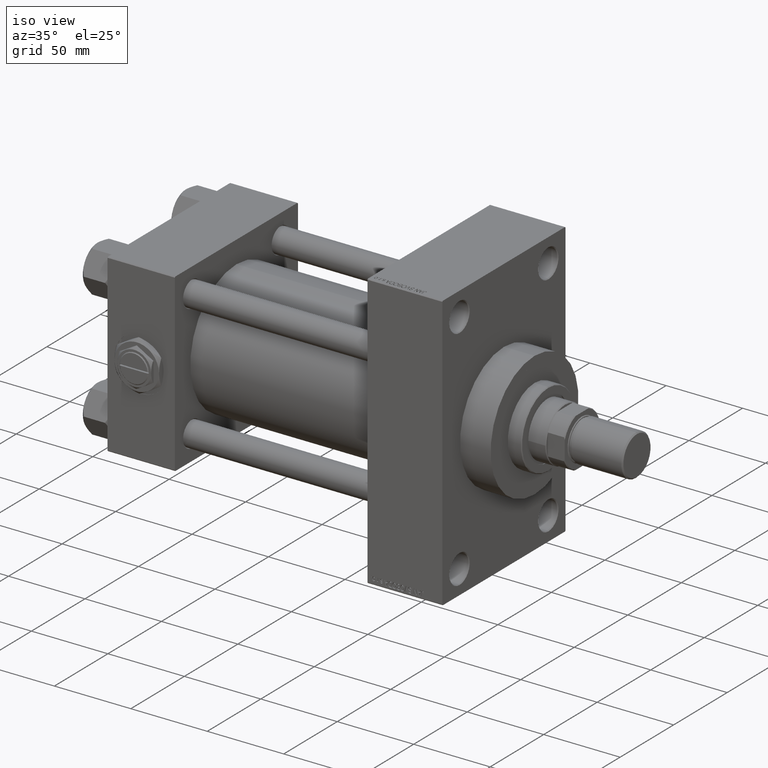
[diagram: clean part render]
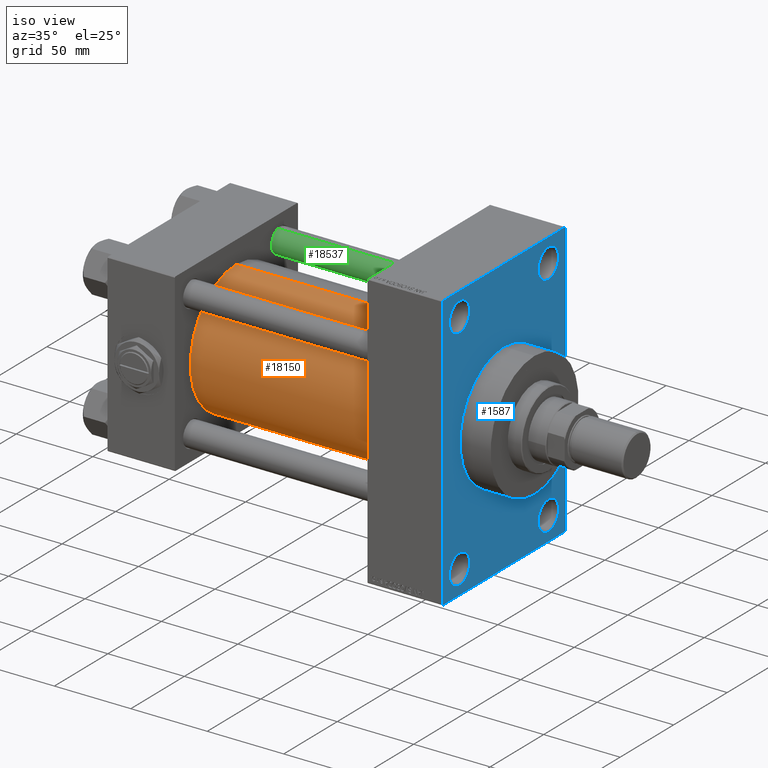
[diagram: same view with three faces highlighted in distinct colors, each labeled with its STEP entity id]
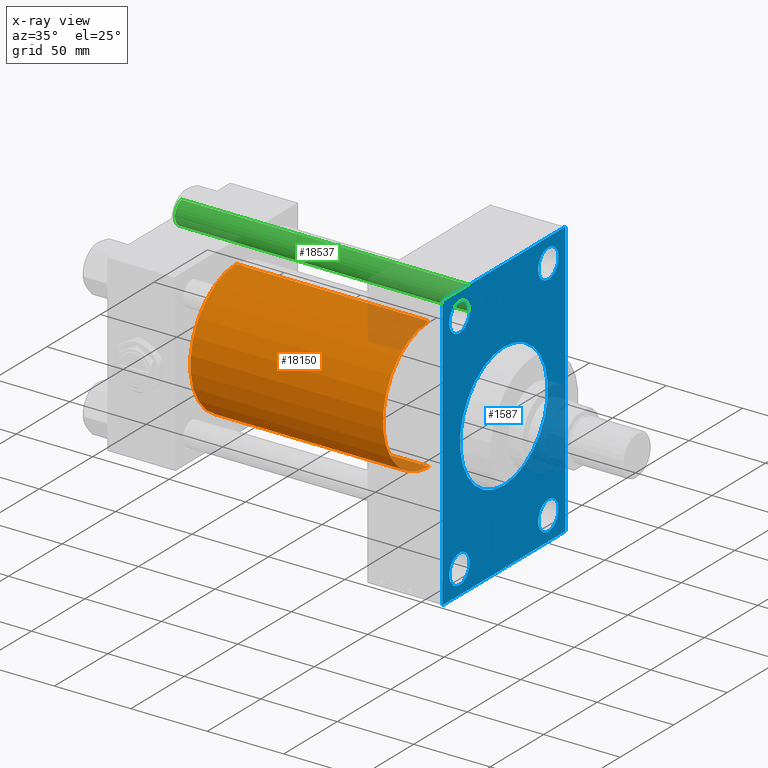
[diagram: x-ray of the same camera — body ghosted, the three highlighted faces saturated]
A machine part, iso view with three faces highlighted in distinct colors.
The next image is the same camera in x-ray (body ghosted, the three faces saturated) — at least one of them is partly hidden behind the body in this view.
Their STEP definitions:

[orange] entity #18150 — the highlighted cylindrical surface (partial cylindrical patch) has radius 43 mm, axis along (-1, -0, -0).
#805 = DIRECTION ( 'NONE',  ( 0.000000000000000000, 0.000000000000000000, 1.000000000000000000 ) ) ;
#1799 = DIRECTION ( 'NONE',  ( -1.000000000000000000, -0.000000000000000000, -0.000000000000000000 ) ) ;
#8947 = CIRCLE ( 'NONE', #32303, 43.00000000000000000 ) ;
#8984 = CARTESIAN_POINT ( 'NONE',  ( 169.9999999999999716, -2.602085213965210642E-15, 0.000000000000000000 ) ) ;
#10189 = CARTESIAN_POINT ( 'NONE',  ( 169.9999999999999716, 2.663896022368408223E-15, -43.00000000000000000 ) ) ;
#11305 = EDGE_CURVE ( 'NONE', #41194, #16848, #43953, .T. ) ;
#12919 = VECTOR ( 'NONE', #45011, 1000.000000000000000 ) ;
#14514 = CYLINDRICAL_SURFACE ( 'NONE', #19343, 43.00000000000000000 ) ;
#14955 = CARTESIAN_POINT ( 'NONE',  ( 43.99999999999998579, -2.602085213965210642E-15, 0.000000000000000000 ) ) ;
#16310 = DIRECTION ( 'NONE',  ( 1.000000000000000000, 0.000000000000000000, 0.000000000000000000 ) ) ;
#16848 = VERTEX_POINT ( 'NONE', #20909 ) ;
#18150 = ADVANCED_FACE ( 'NONE', ( #49083 ), #14514, .T. ) ;
#18742 = ORIENTED_EDGE ( 'NONE', *, *, #47766, .F. ) ;
#19343 = AXIS2_PLACEMENT_3D ( 'NONE', #44803, #41019, #25858 ) ;
#20726 = ORIENTED_EDGE ( 'NONE', *, *, #37204, .T. ) ;
#20909 = CARTESIAN_POINT ( 'NONE',  ( 43.99999999999998579, -2.602085213965210642E-15, 43.00000000000000000 ) ) ;
#24014 = VERTEX_POINT ( 'NONE', #30032 ) ;
#25858 = DIRECTION ( 'NONE',  ( 0.000000000000000000, 0.000000000000000000, 1.000000000000000000 ) ) ;
#29590 = LINE ( 'NONE', #10189, #12919 ) ;
#30032 = CARTESIAN_POINT ( 'NONE',  ( 43.99999999999998579, 2.663896022368408223E-15, -43.00000000000000000 ) ) ;
#30307 = AXIS2_PLACEMENT_3D ( 'NONE', #14955, #47493, #805 ) ;
#31431 = DIRECTION ( 'NONE',  ( 0.000000000000000000, 0.000000000000000000, -1.000000000000000000 ) ) ;
#32303 = AXIS2_PLACEMENT_3D ( 'NONE', #8984, #16310, #31431 ) ;
#34345 = CIRCLE ( 'NONE', #30307, 43.00000000000000000 ) ;
#37204 = EDGE_CURVE ( 'NONE', #16848, #24014, #34345, .T. ) ;
#37275 = CARTESIAN_POINT ( 'NONE',  ( 169.9999999999999716, 2.663896022368408223E-15, -43.00000000000000000 ) ) ;
#37994 = VECTOR ( 'NONE', #1799, 1000.000000000000000 ) ;
#39564 = ORIENTED_EDGE ( 'NONE', *, *, #11305, .T. ) ;
#41019 = DIRECTION ( 'NONE',  ( -1.000000000000000000, -0.000000000000000000, -0.000000000000000000 ) ) ;
#41194 = VERTEX_POINT ( 'NONE', #46212 ) ;
#42300 = EDGE_LOOP ( 'NONE', ( #47371, #18742, #39564, #20726 ) ) ;
#42607 = VERTEX_POINT ( 'NONE', #37275 ) ;
#43953 = LINE ( 'NONE', #44698, #37994 ) ;
#44698 = CARTESIAN_POINT ( 'NONE',  ( 169.9999999999999716, -2.602085213965210642E-15, 43.00000000000000000 ) ) ;
#44803 = CARTESIAN_POINT ( 'NONE',  ( 169.9999999999999716, -2.602085213965210642E-15, 0.000000000000000000 ) ) ;
#45011 = DIRECTION ( 'NONE',  ( -1.000000000000000000, -0.000000000000000000, -0.000000000000000000 ) ) ;
#46179 = EDGE_CURVE ( 'NONE', #42607, #24014, #29590, .T. ) ;
#46212 = CARTESIAN_POINT ( 'NONE',  ( 169.9999999999999716, -2.602085213965210642E-15, 43.00000000000000000 ) ) ;
#47371 = ORIENTED_EDGE ( 'NONE', *, *, #46179, .F. ) ;
#47493 = DIRECTION ( 'NONE',  ( 1.000000000000000000, -0.000000000000000000, 0.000000000000000000 ) ) ;
#47766 = EDGE_CURVE ( 'NONE', #41194, #42607, #8947, .T. ) ;
#49083 = FACE_OUTER_BOUND ( 'NONE', #42300, .T. ) ;

[blue] entity #1587 — the highlighted planar face has unit normal (-1, 0, 0).
#572 = AXIS2_PLACEMENT_3D ( 'NONE', #15158, #45954, #39132 ) ;
#690 = DIRECTION ( 'NONE',  ( -1.000000000000000000, 0.000000000000000000, -0.000000000000000000 ) ) ;
#975 = CIRCLE ( 'NONE', #26750, 9.499999999999896971 ) ;
#1255 = DIRECTION ( 'NONE',  ( 0.000000000000000000, -1.000000000000000000, -1.206764157201257291E-16 ) ) ;
#1290 = CARTESIAN_POINT ( 'NONE',  ( 218.9999999999999716, -56.99999999999999289, -90.00000000000001421 ) ) ;
#1359 = EDGE_LOOP ( 'NONE', ( #40863, #9508, #14010, #8168, #7070, #17039, #38079, #28037 ) ) ;
#1587 = ADVANCED_FACE ( 'NONE', ( #42935, #8358, #42678, #14916, #11647, #23756 ), #26758, .F. ) ;
#1658 = CIRCLE ( 'NONE', #9699, 41.00000000000000000 ) ;
#1811 = LINE ( 'NONE', #17217, #49138 ) ;
#2045 = VECTOR ( 'NONE', #22362, 999.9999999999998863 ) ;
#3313 = VECTOR ( 'NONE', #36248, 1000.000000000000000 ) ;
#3717 = DIRECTION ( 'NONE',  ( 0.000000000000000000, 0.000000000000000000, 1.000000000000000000 ) ) ;
#4362 = CARTESIAN_POINT ( 'NONE',  ( 218.9999999999999716, -41.49999999999999289, -74.49999999999998579 ) ) ;
#4605 = DIRECTION ( 'NONE',  ( 0.000000000000000000, 0.000000000000000000, 1.000000000000000000 ) ) ;
#4726 = EDGE_CURVE ( 'NONE', #17309, #21596, #32619, .T. ) ;
#4795 = DIRECTION ( 'NONE',  ( 1.000000000000000000, 0.000000000000000000, 0.000000000000000000 ) ) ;
#5524 = VECTOR ( 'NONE', #16250, 1000.000000000000000 ) ;
#6222 = CARTESIAN_POINT ( 'NONE',  ( 218.9999999999999716, 57.49999999999997868, -89.49999999999995737 ) ) ;
#6435 = CARTESIAN_POINT ( 'NONE',  ( 218.9999999999999716, 41.50000000000000711, -65.00000000000009948 ) ) ;
#6708 = VERTEX_POINT ( 'NONE', #36300 ) ;
#6778 = CARTESIAN_POINT ( 'NONE',  ( 218.9999999999999716, 41.50000000000000711, 65.00000000000011369 ) ) ;
#6962 = CARTESIAN_POINT ( 'NONE',  ( 218.9999999999999716, -41.49999999999999289, -83.99999999999995737 ) ) ;
#7070 = ORIENTED_EDGE ( 'NONE', *, *, #4726, .F. ) ;
#7499 = EDGE_CURVE ( 'NONE', #17309, #35766, #1811, .T. ) ;
#7521 = CARTESIAN_POINT ( 'NONE',  ( 218.9999999999999716, 57.49999999999997868, -89.49999999999990052 ) ) ;
#7562 = ORIENTED_EDGE ( 'NONE', *, *, #34190, .T. ) ;
#8168 = ORIENTED_EDGE ( 'NONE', *, *, #35249, .T. ) ;
#8333 = DIRECTION ( 'NONE',  ( 0.000000000000000000, 0.000000000000000000, -1.000000000000000000 ) ) ;
#8358 = FACE_BOUND ( 'NONE', #13023, .T. ) ;
#8540 = ORIENTED_EDGE ( 'NONE', *, *, #19887, .T. ) ;
#8550 = DIRECTION ( 'NONE',  ( -1.000000000000000000, 0.000000000000000000, -0.000000000000000000 ) ) ;
#8990 = DIRECTION ( 'NONE',  ( -1.000000000000000000, 0.000000000000000000, -0.000000000000000000 ) ) ;
#9029 = LINE ( 'NONE', #21138, #3313 ) ;
#9508 = ORIENTED_EDGE ( 'NONE', *, *, #49623, .T. ) ;
#9699 = AXIS2_PLACEMENT_3D ( 'NONE', #45153, #26212, #10583 ) ;
#9817 = DIRECTION ( 'NONE',  ( 0.000000000000000000, 0.000000000000000000, 1.000000000000000000 ) ) ;
#9825 = CIRCLE ( 'NONE', #25940, 9.499999999999980460 ) ;
#9834 = VERTEX_POINT ( 'NONE', #13210 ) ;
#10098 = AXIS2_PLACEMENT_3D ( 'NONE', #15302, #34975, #23140 ) ;
#10215 = CARTESIAN_POINT ( 'NONE',  ( 218.9999999999999716, -57.50000000000002132, -89.49999999999997158 ) ) ;
#10411 = CARTESIAN_POINT ( 'NONE',  ( 218.9999999999999716, 56.99999999999992895, -90.00000000000000000 ) ) ;
#10583 = DIRECTION ( 'NONE',  ( 0.000000000000000000, 0.000000000000000000, -1.000000000000000000 ) ) ;
#11308 = VERTEX_POINT ( 'NONE', #20743 ) ;
#11647 = FACE_BOUND ( 'NONE', #32983, .T. ) ;
#11649 = DIRECTION ( 'NONE',  ( -0.000000000000000000, -0.7071067811865524577, -0.7071067811865426878 ) ) ;
#12174 = EDGE_LOOP ( 'NONE', ( #12222, #37293 ) ) ;
#12222 = ORIENTED_EDGE ( 'NONE', *, *, #26687, .T. ) ;
#12235 = VECTOR ( 'NONE', #16940, 999.9999999999998863 ) ;
#12299 = EDGE_CURVE ( 'NONE', #13104, #22344, #25924, .T. ) ;
#12390 = DIRECTION ( 'NONE',  ( 0.000000000000000000, 0.000000000000000000, -1.000000000000000000 ) ) ;
#12635 = CARTESIAN_POINT ( 'NONE',  ( 218.9999999999999716, 0.000000000000000000, 0.000000000000000000 ) ) ;
#12818 = EDGE_CURVE ( 'NONE', #42210, #24307, #975, .T. ) ;
#13023 = EDGE_LOOP ( 'NONE', ( #8540, #7562 ) ) ;
#13104 = VERTEX_POINT ( 'NONE', #32946 ) ;
#13126 = LINE ( 'NONE', #17395, #33208 ) ;
#13156 = VERTEX_POINT ( 'NONE', #37728 ) ;
#13210 = CARTESIAN_POINT ( 'NONE',  ( 218.9999999999999716, -41.49999999999999289, 83.99999999999991473 ) ) ;
#13880 = AXIS2_PLACEMENT_3D ( 'NONE', #12635, #4795, #12390 ) ;
#14010 = ORIENTED_EDGE ( 'NONE', *, *, #22659, .F. ) ;
#14135 = AXIS2_PLACEMENT_3D ( 'NONE', #21343, #8990, #21094 ) ;
#14746 = AXIS2_PLACEMENT_3D ( 'NONE', #27954, #8550, #23939 ) ;
#14771 = DIRECTION ( 'NONE',  ( -1.000000000000000000, 0.000000000000000000, -0.000000000000000000 ) ) ;
#14916 = FACE_BOUND ( 'NONE', #44201, .T. ) ;
#15158 = CARTESIAN_POINT ( 'NONE',  ( 218.9999999999999716, 0.000000000000000000, 0.000000000000000000 ) ) ;
#15302 = CARTESIAN_POINT ( 'NONE',  ( 218.9999999999999716, -41.49999999999999289, -74.49999999999998579 ) ) ;
#15670 = LINE ( 'NONE', #38373, #16943 ) ;
#16051 = CARTESIAN_POINT ( 'NONE',  ( 218.9999999999999716, -57.50000000000002132, 89.50000000000000000 ) ) ;
#16250 = DIRECTION ( 'NONE',  ( 0.000000000000000000, 3.854941057726238467E-17, -1.000000000000000000 ) ) ;
#16940 = DIRECTION ( 'NONE',  ( 0.000000000000000000, 0.7071067811865771047, -0.7071067811865180408 ) ) ;
#16943 = VECTOR ( 'NONE', #11649, 1000.000000000000000 ) ;
#17039 = ORIENTED_EDGE ( 'NONE', *, *, #7499, .T. ) ;
#17217 = CARTESIAN_POINT ( 'NONE',  ( 218.9999999999999716, 56.99999999999997158, 89.99999999999998579 ) ) ;
#17309 = VERTEX_POINT ( 'NONE', #30872 ) ;
#17395 = CARTESIAN_POINT ( 'NONE',  ( 218.9999999999999716, 57.49999999999997158, 89.99999999999998579 ) ) ;
#18744 = CARTESIAN_POINT ( 'NONE',  ( 218.9999999999999716, -57.50000000000002132, 89.99999999999997158 ) ) ;
#19530 = EDGE_CURVE ( 'NONE', #40295, #6708, #43653, .T. ) ;
#19774 = DIRECTION ( 'NONE',  ( -1.000000000000000000, 0.000000000000000000, -0.000000000000000000 ) ) ;
#19887 = EDGE_CURVE ( 'NONE', #21811, #13156, #9825, .T. ) ;
#20743 = CARTESIAN_POINT ( 'NONE',  ( 218.9999999999999716, -57.00000000000004263, 89.99999999999997158 ) ) ;
#21094 = DIRECTION ( 'NONE',  ( 0.000000000000000000, 0.000000000000000000, 1.000000000000000000 ) ) ;
#21138 = CARTESIAN_POINT ( 'NONE',  ( 218.9999999999999716, 57.49999999999997868, -90.00000000000000000 ) ) ;
#21343 = CARTESIAN_POINT ( 'NONE',  ( 218.9999999999999716, 41.50000000000000711, -74.50000000000000000 ) ) ;
#21371 = EDGE_CURVE ( 'NONE', #35766, #11308, #13126, .T. ) ;
#21596 = VERTEX_POINT ( 'NONE', #7521 ) ;
#21811 = VERTEX_POINT ( 'NONE', #6962 ) ;
#22344 = VERTEX_POINT ( 'NONE', #40116 ) ;
#22362 = DIRECTION ( 'NONE',  ( -0.000000000000000000, 0.7071067811865574537, 0.7071067811865376918 ) ) ;
#22659 = EDGE_CURVE ( 'NONE', #34832, #29392, #9029, .T. ) ;
#23140 = DIRECTION ( 'NONE',  ( 0.000000000000000000, 0.000000000000000000, 1.000000000000000000 ) ) ;
#23756 = FACE_OUTER_BOUND ( 'NONE', #1359, .T. ) ;
#23779 = LINE ( 'NONE', #1290, #12235 ) ;
#23939 = DIRECTION ( 'NONE',  ( 0.000000000000000000, 0.000000000000000000, 1.000000000000000000 ) ) ;
#24307 = VERTEX_POINT ( 'NONE', #6778 ) ;
#25391 = CIRCLE ( 'NONE', #10098, 9.499999999999980460 ) ;
#25439 = DIRECTION ( 'NONE',  ( -1.000000000000000000, 0.000000000000000000, -0.000000000000000000 ) ) ;
#25924 = CIRCLE ( 'NONE', #13880, 41.00000000000000000 ) ;
#25940 = AXIS2_PLACEMENT_3D ( 'NONE', #4362, #19774, #4605 ) ;
#26180 = CARTESIAN_POINT ( 'NONE',  ( 218.9999999999999716, -41.49999999999999289, 74.50000000000001421 ) ) ;
#26212 = DIRECTION ( 'NONE',  ( 1.000000000000000000, 0.000000000000000000, 0.000000000000000000 ) ) ;
#26274 = CARTESIAN_POINT ( 'NONE',  ( 218.9999999999999716, -41.49999999999999289, 65.00000000000011369 ) ) ;
#26687 = EDGE_CURVE ( 'NONE', #27630, #9834, #43797, .T. ) ;
#26750 = AXIS2_PLACEMENT_3D ( 'NONE', #44382, #25439, #9817 ) ;
#26758 = PLANE ( 'NONE',  #572 ) ;
#27010 = VERTEX_POINT ( 'NONE', #16051 ) ;
#27180 = VERTEX_POINT ( 'NONE', #10215 ) ;
#27630 = VERTEX_POINT ( 'NONE', #26274 ) ;
#27954 = CARTESIAN_POINT ( 'NONE',  ( 218.9999999999999716, -41.49999999999999289, 74.50000000000001421 ) ) ;
#28037 = ORIENTED_EDGE ( 'NONE', *, *, #46382, .T. ) ;
#29392 = VERTEX_POINT ( 'NONE', #47294 ) ;
#29997 = CARTESIAN_POINT ( 'NONE',  ( 218.9999999999999716, 41.50000000000000711, 83.99999999999991473 ) ) ;
#30142 = DIRECTION ( 'NONE',  ( 0.000000000000000000, 0.000000000000000000, 1.000000000000000000 ) ) ;
#30638 = EDGE_CURVE ( 'NONE', #27010, #27180, #42909, .T. ) ;
#30872 = CARTESIAN_POINT ( 'NONE',  ( 218.9999999999999716, 57.49999999999997158, 89.50000000000001421 ) ) ;
#30929 = EDGE_CURVE ( 'NONE', #9834, #27630, #48780, .T. ) ;
#31288 = ORIENTED_EDGE ( 'NONE', *, *, #34378, .T. ) ;
#31466 = CARTESIAN_POINT ( 'NONE',  ( 218.9999999999999716, 41.50000000000000711, -74.50000000000000000 ) ) ;
#31831 = AXIS2_PLACEMENT_3D ( 'NONE', #26180, #46370, #3717 ) ;
#32587 = DIRECTION ( 'NONE',  ( 0.000000000000000000, -0.7071067811865671127, 0.7071067811865279218 ) ) ;
#32619 = LINE ( 'NONE', #40203, #5524 ) ;
#32946 = CARTESIAN_POINT ( 'NONE',  ( 218.9999999999999716, 0.000000000000000000, 41.00000000000000000 ) ) ;
#32983 = EDGE_LOOP ( 'NONE', ( #38639, #37060 ) ) ;
#33137 = AXIS2_PLACEMENT_3D ( 'NONE', #31466, #690, #39300 ) ;
#33208 = VECTOR ( 'NONE', #1255, 1000.000000000000000 ) ;
#34190 = EDGE_CURVE ( 'NONE', #13156, #21811, #25391, .T. ) ;
#34378 = EDGE_CURVE ( 'NONE', #6708, #40295, #47174, .T. ) ;
#34832 = VERTEX_POINT ( 'NONE', #10411 ) ;
#34975 = DIRECTION ( 'NONE',  ( -1.000000000000000000, 0.000000000000000000, -0.000000000000000000 ) ) ;
#35249 = EDGE_CURVE ( 'NONE', #34832, #21596, #48375, .T. ) ;
#35766 = VERTEX_POINT ( 'NONE', #39534 ) ;
#35962 = EDGE_CURVE ( 'NONE', #24307, #42210, #39950, .T. ) ;
#36248 = DIRECTION ( 'NONE',  ( 0.000000000000000000, -1.000000000000000000, -1.206764157201257045E-16 ) ) ;
#36300 = CARTESIAN_POINT ( 'NONE',  ( 218.9999999999999716, 41.50000000000000711, -83.99999999999990052 ) ) ;
#37002 = ORIENTED_EDGE ( 'NONE', *, *, #19530, .T. ) ;
#37060 = ORIENTED_EDGE ( 'NONE', *, *, #47302, .F. ) ;
#37293 = ORIENTED_EDGE ( 'NONE', *, *, #30929, .T. ) ;
#37728 = CARTESIAN_POINT ( 'NONE',  ( 218.9999999999999716, -41.49999999999999289, -65.00000000000000000 ) ) ;
#38079 = ORIENTED_EDGE ( 'NONE', *, *, #21371, .T. ) ;
#38373 = CARTESIAN_POINT ( 'NONE',  ( 218.9999999999999716, -57.50000000000002132, 89.50000000000000000 ) ) ;
#38639 = ORIENTED_EDGE ( 'NONE', *, *, #12299, .F. ) ;
#39132 = DIRECTION ( 'NONE',  ( -0.000000000000000000, 0.000000000000000000, 1.000000000000000000 ) ) ;
#39300 = DIRECTION ( 'NONE',  ( 0.000000000000000000, 0.000000000000000000, 1.000000000000000000 ) ) ;
#39534 = CARTESIAN_POINT ( 'NONE',  ( 218.9999999999999716, 56.99999999999997158, 89.99999999999998579 ) ) ;
#39690 = EDGE_LOOP ( 'NONE', ( #31288, #37002 ) ) ;
#39950 = CIRCLE ( 'NONE', #41541, 9.499999999999896971 ) ;
#40116 = CARTESIAN_POINT ( 'NONE',  ( 218.9999999999999716, 5.021051876504148963E-15, -41.00000000000000000 ) ) ;
#40203 = CARTESIAN_POINT ( 'NONE',  ( 218.9999999999999716, 57.49999999999997158, 89.99999999999998579 ) ) ;
#40295 = VERTEX_POINT ( 'NONE', #6435 ) ;
#40863 = ORIENTED_EDGE ( 'NONE', *, *, #30638, .T. ) ;
#41541 = AXIS2_PLACEMENT_3D ( 'NONE', #44566, #14771, #30142 ) ;
#42210 = VERTEX_POINT ( 'NONE', #29997 ) ;
#42678 = FACE_BOUND ( 'NONE', #39690, .T. ) ;
#42909 = LINE ( 'NONE', #18744, #49545 ) ;
#42935 = FACE_BOUND ( 'NONE', #12174, .T. ) ;
#43653 = CIRCLE ( 'NONE', #33137, 9.499999999999896971 ) ;
#43797 = CIRCLE ( 'NONE', #14746, 9.499999999999896971 ) ;
#44201 = EDGE_LOOP ( 'NONE', ( #44659, #47959 ) ) ;
#44382 = CARTESIAN_POINT ( 'NONE',  ( 218.9999999999999716, 41.50000000000000711, 74.50000000000001421 ) ) ;
#44566 = CARTESIAN_POINT ( 'NONE',  ( 218.9999999999999716, 41.50000000000000711, 74.50000000000001421 ) ) ;
#44659 = ORIENTED_EDGE ( 'NONE', *, *, #35962, .T. ) ;
#45153 = CARTESIAN_POINT ( 'NONE',  ( 218.9999999999999716, 0.000000000000000000, 0.000000000000000000 ) ) ;
#45954 = DIRECTION ( 'NONE',  ( -1.000000000000000000, 0.000000000000000000, -0.000000000000000000 ) ) ;
#46370 = DIRECTION ( 'NONE',  ( -1.000000000000000000, 0.000000000000000000, -0.000000000000000000 ) ) ;
#46382 = EDGE_CURVE ( 'NONE', #11308, #27010, #15670, .T. ) ;
#47174 = CIRCLE ( 'NONE', #14135, 9.499999999999896971 ) ;
#47294 = CARTESIAN_POINT ( 'NONE',  ( 218.9999999999999716, -56.99999999999999289, -90.00000000000001421 ) ) ;
#47302 = EDGE_CURVE ( 'NONE', #22344, #13104, #1658, .T. ) ;
#47959 = ORIENTED_EDGE ( 'NONE', *, *, #12818, .T. ) ;
#48375 = LINE ( 'NONE', #6222, #2045 ) ;
#48780 = CIRCLE ( 'NONE', #31831, 9.499999999999896971 ) ;
#49138 = VECTOR ( 'NONE', #32587, 1000.000000000000000 ) ;
#49545 = VECTOR ( 'NONE', #8333, 1000.000000000000000 ) ;
#49623 = EDGE_CURVE ( 'NONE', #27180, #29392, #23779, .T. ) ;

[green] entity #18537 — the highlighted cylindrical surface (edge-blend (fillet) strip) has radius 8 mm, axis along (-1, -0, 0).
#1269 = CIRCLE ( 'NONE', #29453, 8.000000000000000000 ) ;
#2672 = DIRECTION ( 'NONE',  ( -0.000000000000000000, -0.000000000000000000, 1.000000000000000000 ) ) ;
#4163 = DIRECTION ( 'NONE',  ( -0.000000000000000000, -0.000000000000000000, -1.000000000000000000 ) ) ;
#4164 = DIRECTION ( 'NONE',  ( -0.000000000000000000, -0.000000000000000000, -1.000000000000000000 ) ) ;
#5537 = DIRECTION ( 'NONE',  ( 1.000000000000000000, 0.000000000000000000, 0.000000000000000000 ) ) ;
#9470 = ORIENTED_EDGE ( 'NONE', *, *, #38310, .T. ) ;
#9896 = DIRECTION ( 'NONE',  ( 1.000000000000000000, 0.000000000000000000, 0.000000000000000000 ) ) ;
#11202 = ORIENTED_EDGE ( 'NONE', *, *, #37146, .F. ) ;
#12739 = LINE ( 'NONE', #19826, #47776 ) ;
#13291 = EDGE_CURVE ( 'NONE', #46191, #20181, #12739, .T. ) ;
#15448 = LINE ( 'NONE', #23033, #40818 ) ;
#16601 = CARTESIAN_POINT ( 'NONE',  ( 8.000000000000000000, 9.797174393178823685E-16, 202.5000000000000853 ) ) ;
#16862 = ORIENTED_EDGE ( 'NONE', *, *, #13291, .T. ) ;
#18537 = ADVANCED_FACE ( 'NONE', ( #30157 ), #23350, .T. ) ;
#19322 = CARTESIAN_POINT ( 'NONE',  ( 0.000000000000000000, 0.000000000000000000, 203.0000000000000000 ) ) ;
#19826 = CARTESIAN_POINT ( 'NONE',  ( -8.000000000000000000, 0.000000000000000000, 203.0000000000000000 ) ) ;
#20181 = VERTEX_POINT ( 'NONE', #25700 ) ;
#20340 = VERTEX_POINT ( 'NONE', #16601 ) ;
#21540 = ORIENTED_EDGE ( 'NONE', *, *, #32112, .T. ) ;
#21987 = DIRECTION ( 'NONE',  ( 0.000000000000000000, 0.000000000000000000, -1.000000000000000000 ) ) ;
#22351 = EDGE_LOOP ( 'NONE', ( #11202, #9470, #16862, #21540 ) ) ;
#23033 = CARTESIAN_POINT ( 'NONE',  ( 8.000000000000000000, 9.797174393178823685E-16, 203.0000000000000000 ) ) ;
#23350 = CYLINDRICAL_SURFACE ( 'NONE', #26996, 8.000000000000000000 ) ;
#25700 = CARTESIAN_POINT ( 'NONE',  ( -8.000000000000000000, 0.000000000000000000, 0.5000000000001947331 ) ) ;
#26996 = AXIS2_PLACEMENT_3D ( 'NONE', #19322, #4164, #30901 ) ;
#29453 = AXIS2_PLACEMENT_3D ( 'NONE', #39617, #2672, #5537 ) ;
#30157 = FACE_OUTER_BOUND ( 'NONE', #22351, .T. ) ;
#30901 = DIRECTION ( 'NONE',  ( -1.000000000000000000, 0.000000000000000000, 0.000000000000000000 ) ) ;
#32112 = EDGE_CURVE ( 'NONE', #20181, #32210, #1269, .T. ) ;
#32210 = VERTEX_POINT ( 'NONE', #38242 ) ;
#33129 = CARTESIAN_POINT ( 'NONE',  ( -8.000000000000000000, 0.000000000000000000, 202.5000000000000853 ) ) ;
#35215 = AXIS2_PLACEMENT_3D ( 'NONE', #44457, #21987, #9896 ) ;
#37146 = EDGE_CURVE ( 'NONE', #20340, #32210, #15448, .T. ) ;
#38242 = CARTESIAN_POINT ( 'NONE',  ( 8.000000000000000000, 9.797174393178823685E-16, 0.5000000000001947331 ) ) ;
#38310 = EDGE_CURVE ( 'NONE', #20340, #46191, #47307, .T. ) ;
#39617 = CARTESIAN_POINT ( 'NONE',  ( 0.000000000000000000, 0.000000000000000000, 0.5000000000001947331 ) ) ;
#40818 = VECTOR ( 'NONE', #42213, 1000.000000000000000 ) ;
#42213 = DIRECTION ( 'NONE',  ( -0.000000000000000000, -0.000000000000000000, -1.000000000000000000 ) ) ;
#44457 = CARTESIAN_POINT ( 'NONE',  ( 0.000000000000000000, 0.000000000000000000, 202.5000000000000853 ) ) ;
#46191 = VERTEX_POINT ( 'NONE', #33129 ) ;
#47307 = CIRCLE ( 'NONE', #35215, 8.000000000000000000 ) ;
#47776 = VECTOR ( 'NONE', #4163, 1000.000000000000000 ) ;